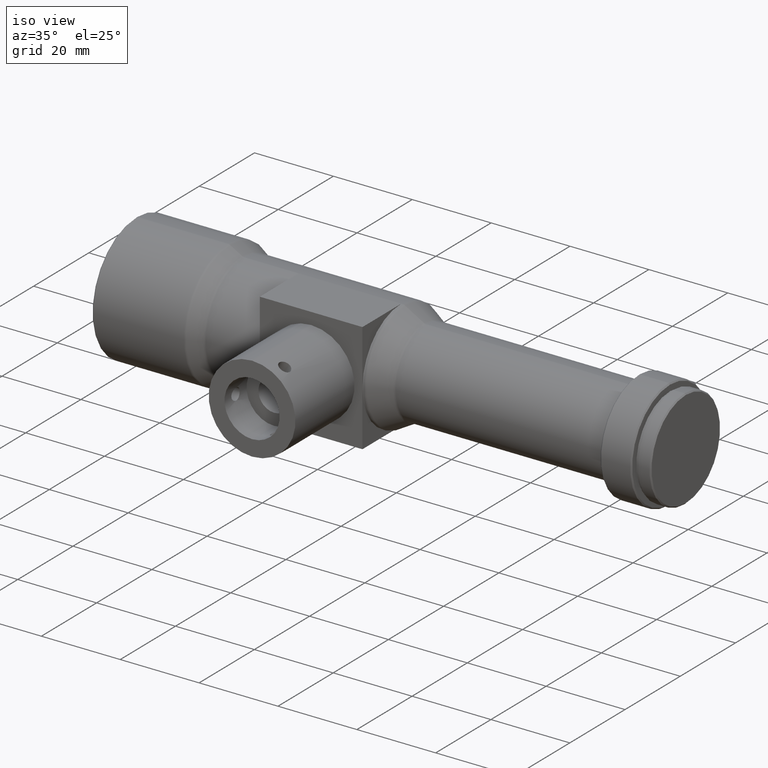
[diagram: clean part render]
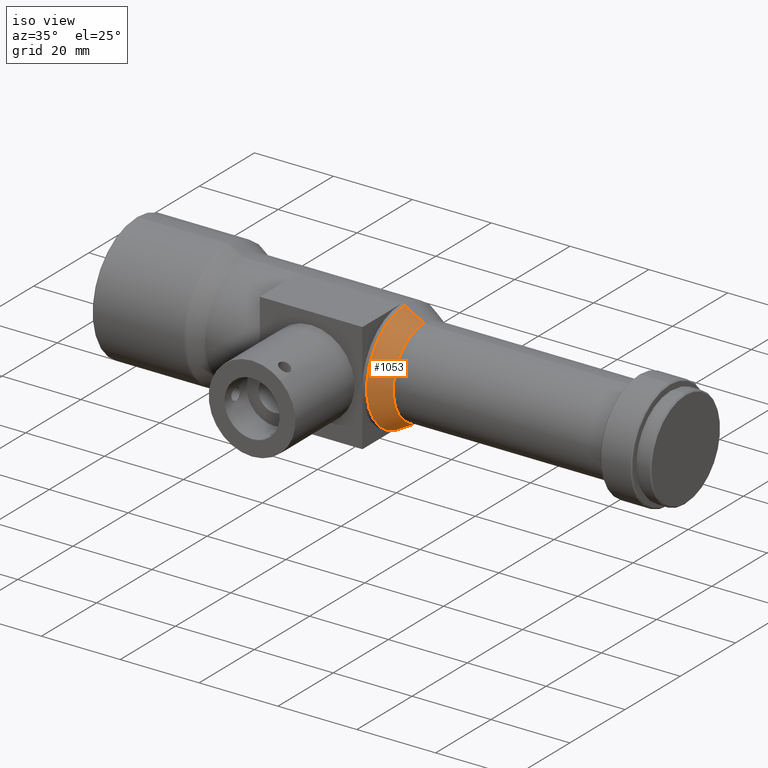
[diagram: same view with one face highlighted and labeled with its STEP entity id]
A machine part, iso view. The second image highlights one B-rep face of the part: STEP entity #1053.
In plain terms, the highlighted conical surface has half-angle 29.648 deg.
Its self-contained STEP definition (entity closure, byte-faithful):
#71 = CARTESIAN_POINT ( 'NONE',  ( 73.00533080250464500, 1.363144390183596200E-015, -11.13091865452692600 ) ) ;
#72 = CARTESIAN_POINT ( 'NONE',  ( 73.00533080250464500, 0.0000000000000000000, 0.0000000000000000000 ) ) ;
#110 = CONICAL_SURFACE ( 'NONE', #1072, 11.13091865452692800, 0.5174541556960662300 ) ;
#117 = AXIS2_PLACEMENT_3D ( 'NONE', #72, #1118, #1740 ) ;
#119 = DIRECTION ( 'NONE',  ( -1.000000000000000000, -0.0000000000000000000, -0.0000000000000000000 ) ) ;
#204 = CIRCLE ( 'NONE', #1812, 13.86908134547308300 ) ;
#262 = CARTESIAN_POINT ( 'NONE',  ( 73.00533080250464500, 0.0000000000000000000, 0.0000000000000000000 ) ) ;
#305 = EDGE_CURVE ( 'NONE', #875, #477, #930, .T. ) ;
#308 = ORIENTED_EDGE ( 'NONE', *, *, #1018, .F. ) ;
#473 = ORIENTED_EDGE ( 'NONE', *, *, #305, .T. ) ;
#477 = VERTEX_POINT ( 'NONE', #1519 ) ;
#562 = CARTESIAN_POINT ( 'NONE',  ( 68.19466919749535800, 0.0000000000000000000, 13.86908134547308300 ) ) ;
#573 = CARTESIAN_POINT ( 'NONE',  ( 68.19466919749535800, 0.0000000000000000000, 0.0000000000000000000 ) ) ;
#648 = VECTOR ( 'NONE', #1877, 1000.000000000000200 ) ;
#664 = CARTESIAN_POINT ( 'NONE',  ( 73.00533080250464500, 1.363144390183596600E-015, -11.13091865452692800 ) ) ;
#681 = DIRECTION ( 'NONE',  ( -0.8690813454730798000, 0.0000000000000000000, 0.4946691974953577000 ) ) ;
#713 = DIRECTION ( 'NONE',  ( 0.0000000000000000000, 0.0000000000000000000, 1.000000000000000000 ) ) ;
#716 = ORIENTED_EDGE ( 'NONE', *, *, #888, .T. ) ;
#737 = VECTOR ( 'NONE', #681, 1000.000000000000200 ) ;
#838 = EDGE_CURVE ( 'NONE', #875, #1159, #1043, .T. ) ;
#863 = DIRECTION ( 'NONE',  ( 0.0000000000000000000, 0.0000000000000000000, 1.000000000000000000 ) ) ;
#875 = VERTEX_POINT ( 'NONE', #71 ) ;
#883 = CARTESIAN_POINT ( 'NONE',  ( 68.19466919749535800, 1.698472607684787800E-015, -13.86908134547308300 ) ) ;
#888 = EDGE_CURVE ( 'NONE', #477, #1631, #902, .T. ) ;
#902 = LINE ( 'NONE', #1617, #737 ) ;
#930 = CIRCLE ( 'NONE', #117, 11.13091865452692800 ) ;
#978 = EDGE_LOOP ( 'NONE', ( #1427, #473, #716, #308 ) ) ;
#1018 = EDGE_CURVE ( 'NONE', #1159, #1631, #204, .T. ) ;
#1043 = LINE ( 'NONE', #664, #648 ) ;
#1053 = ADVANCED_FACE ( 'NONE', ( #1494 ), #110, .T. ) ;
#1072 = AXIS2_PLACEMENT_3D ( 'NONE', #262, #119, #713 ) ;
#1118 = DIRECTION ( 'NONE',  ( -1.000000000000000000, -0.0000000000000000000, -0.0000000000000000000 ) ) ;
#1159 = VERTEX_POINT ( 'NONE', #883 ) ;
#1427 = ORIENTED_EDGE ( 'NONE', *, *, #838, .F. ) ;
#1465 = DIRECTION ( 'NONE',  ( -1.000000000000000000, -0.0000000000000000000, -0.0000000000000000000 ) ) ;
#1494 = FACE_OUTER_BOUND ( 'NONE', #978, .T. ) ;
#1519 = CARTESIAN_POINT ( 'NONE',  ( 73.00533080250464500, 0.0000000000000000000, 11.13091865452692600 ) ) ;
#1617 = CARTESIAN_POINT ( 'NONE',  ( 73.00533080250464500, 0.0000000000000000000, 11.13091865452692800 ) ) ;
#1631 = VERTEX_POINT ( 'NONE', #562 ) ;
#1740 = DIRECTION ( 'NONE',  ( 0.0000000000000000000, 0.0000000000000000000, 1.000000000000000000 ) ) ;
#1812 = AXIS2_PLACEMENT_3D ( 'NONE', #573, #1465, #863 ) ;
#1877 = DIRECTION ( 'NONE',  ( -0.8690813454730798000, 6.057950493494797200E-017, -0.4946691974953577000 ) ) ;